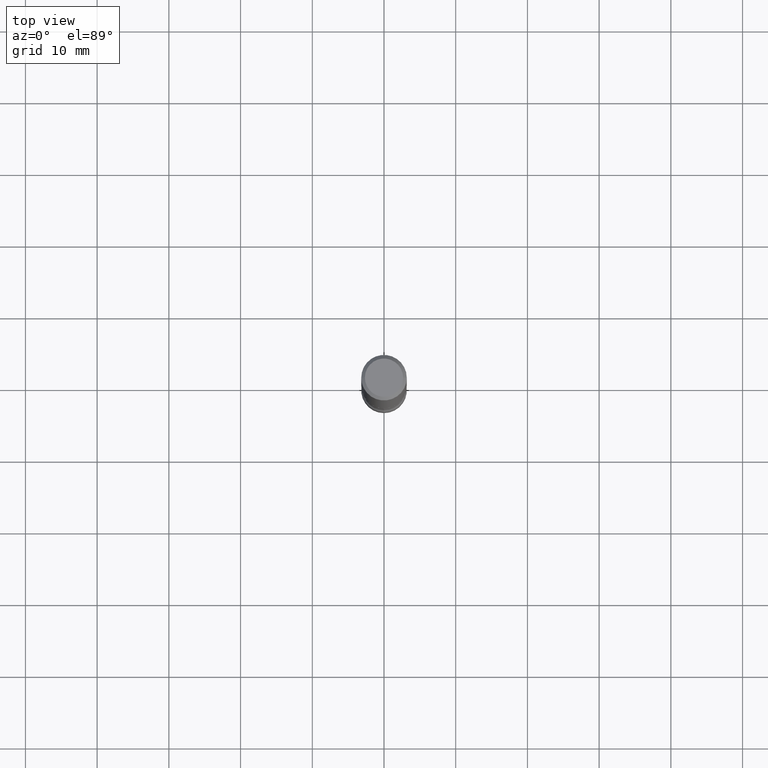
[diagram: clean part render]
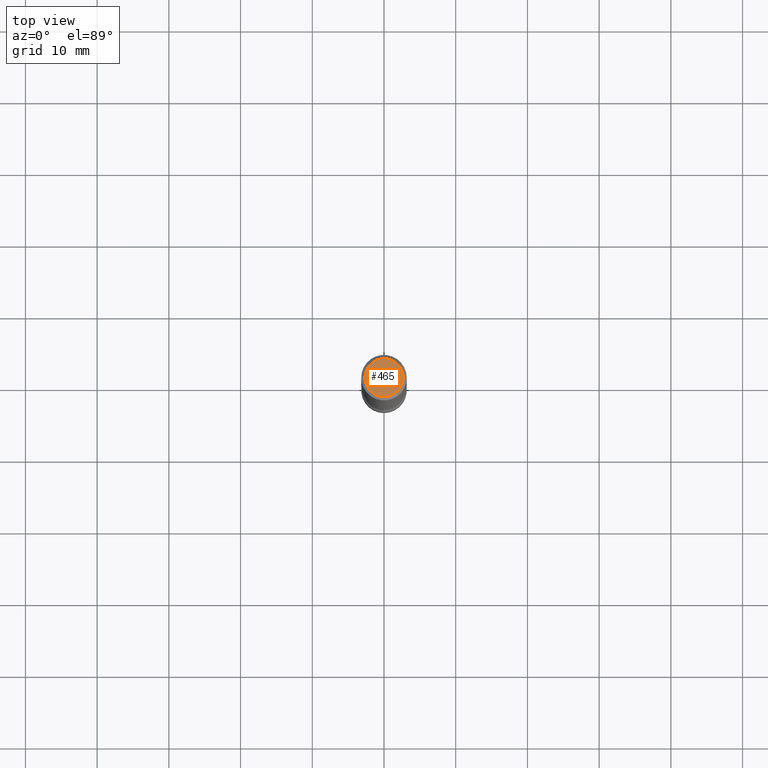
[diagram: same view with one face highlighted and labeled with its STEP entity id]
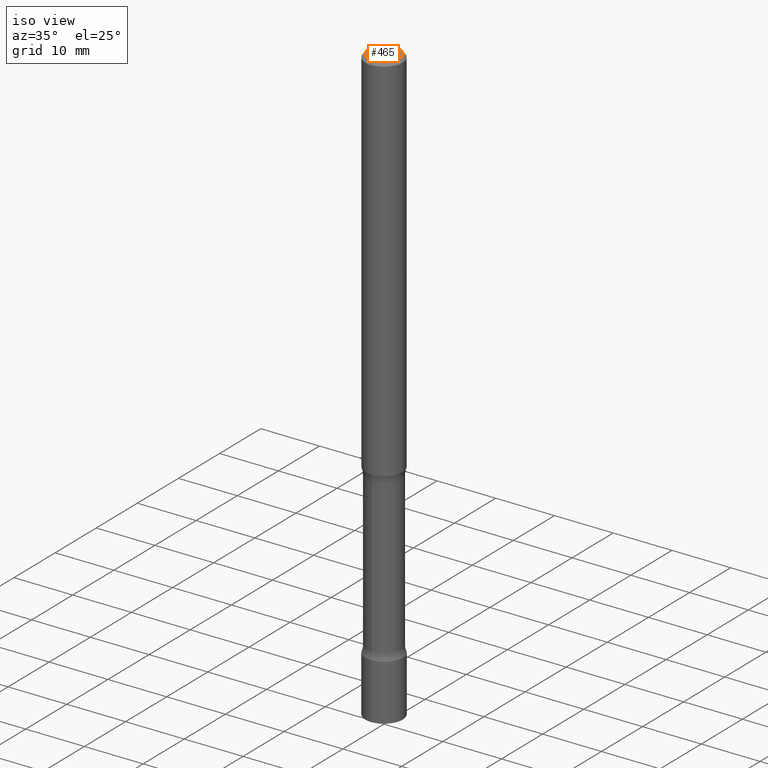
[diagram: same view with one face highlighted and labeled with its STEP entity id]
A machine part, top view. The second image highlights one B-rep face of the part: STEP entity #465.
A second angle (iso view) of the same face is appended — the face is thin or edge-on in the first view.
In plain terms, the highlighted planar face has unit normal (0, -0, -1).
Its self-contained STEP definition (entity closure, byte-faithful):
#16 = DIRECTION ( 'NONE',  ( -2.445468806185136597E-29, 3.491481338843145583E-15, 1.000000000000000000 ) ) ;
#18 = EDGE_CURVE ( 'NONE', #163, #394, #255, .T. ) ;
#29 = FACE_OUTER_BOUND ( 'NONE', #443, .T. ) ;
#108 = DIRECTION ( 'NONE',  ( -1.000000000000000000, 6.982962677686265922E-15, -4.876176775795935793E-29 ) ) ;
#148 = DIRECTION ( 'NONE',  ( 1.000000000000000000, -6.982962677686265922E-15, 4.876176775795935793E-29 ) ) ;
#163 = VERTEX_POINT ( 'NONE', #217 ) ;
#171 = CIRCLE ( 'NONE', #281, 0.1049999999999997047 ) ;
#188 = EDGE_CURVE ( 'NONE', #394, #163, #171, .T. ) ;
#191 = ORIENTED_EDGE ( 'NONE', *, *, #188, .T. ) ;
#205 = AXIS2_PLACEMENT_3D ( 'NONE', #489, #16, #334 ) ;
#216 = PLANE ( 'NONE',  #439 ) ;
#217 = CARTESIAN_POINT ( 'NONE',  ( -0.1049999999999997047, 7.681258945454870110E-16, -5.249639473182151863E-30 ) ) ;
#255 = CIRCLE ( 'NONE', #205, 0.1049999999999997047 ) ;
#281 = AXIS2_PLACEMENT_3D ( 'NONE', #460, #405, #148 ) ;
#334 = DIRECTION ( 'NONE',  ( 1.000000000000000000, -6.982962677686265922E-15, 4.876176775795935793E-29 ) ) ;
#363 = CARTESIAN_POINT ( 'NONE',  ( 0.1049999999999997047, -8.238720831321554950E-16, 5.444276250344135351E-30 ) ) ;
#394 = VERTEX_POINT ( 'NONE', #363 ) ;
#405 = DIRECTION ( 'NONE',  ( -2.445468806185136597E-29, 3.491481338843145583E-15, 1.000000000000000000 ) ) ;
#429 = ORIENTED_EDGE ( 'NONE', *, *, #18, .T. ) ;
#439 = AXIS2_PLACEMENT_3D ( 'NONE', #455, #496, #108 ) ;
#443 = EDGE_LOOP ( 'NONE', ( #429, #191 ) ) ;
#455 = CARTESIAN_POINT ( 'NONE',  ( 7.332110811570558550E-16, 0.1049999999999997047, -3.666055405785292587E-16 ) ) ;
#460 = CARTESIAN_POINT ( 'NONE',  ( 0.000000000000000000, 0.000000000000000000, 0.000000000000000000 ) ) ;
#465 = ADVANCED_FACE ( 'NONE', ( #29 ), #216, .F. ) ;
#489 = CARTESIAN_POINT ( 'NONE',  ( 0.000000000000000000, 0.000000000000000000, 0.000000000000000000 ) ) ;
#496 = DIRECTION ( 'NONE',  ( 2.438088387897960049E-29, -3.491481338843145188E-15, -1.000000000000000000 ) ) ;